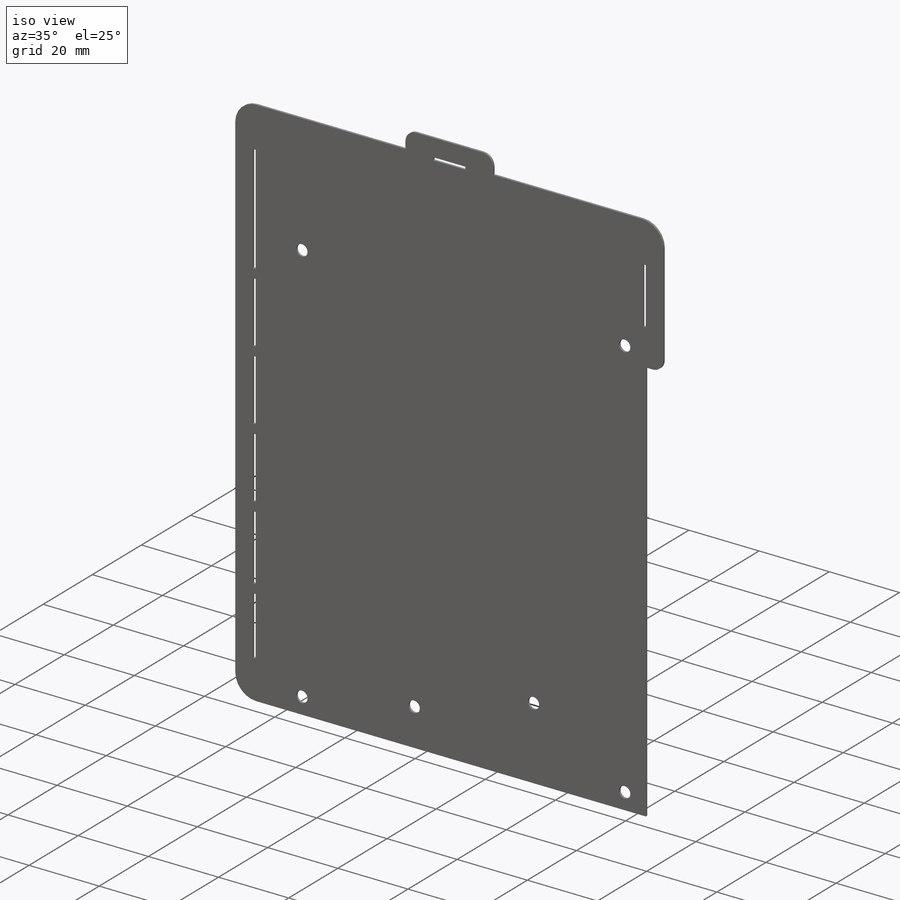
[diagram: iso view]
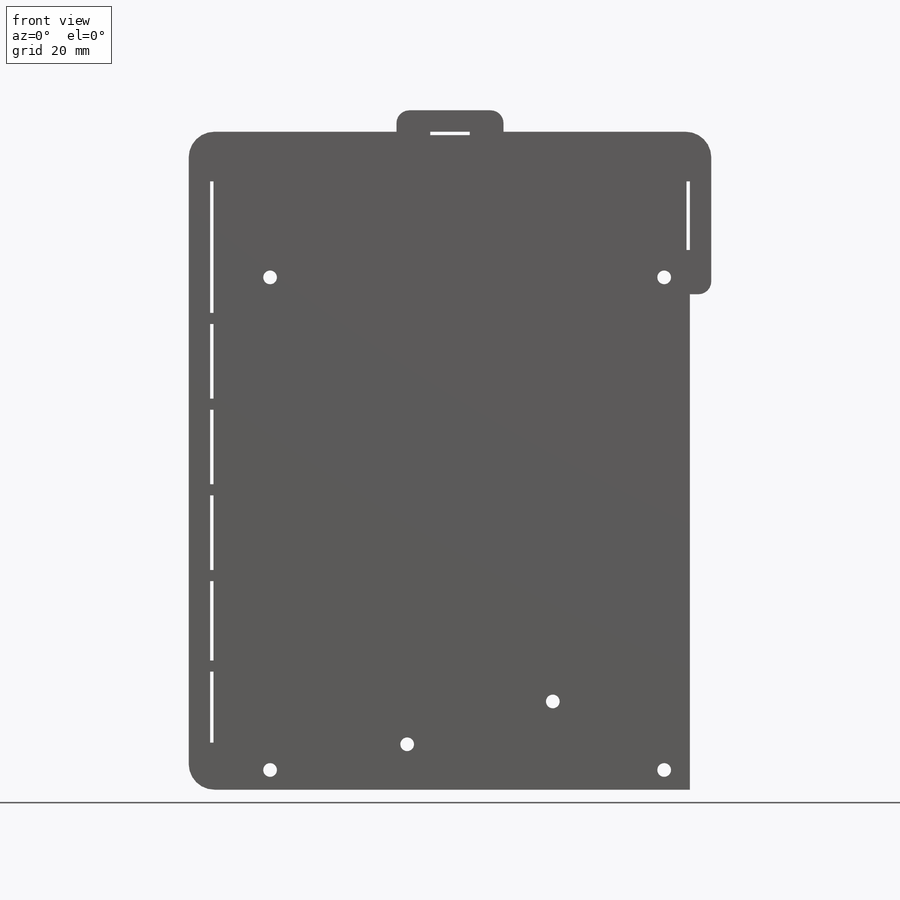
[diagram: front view]
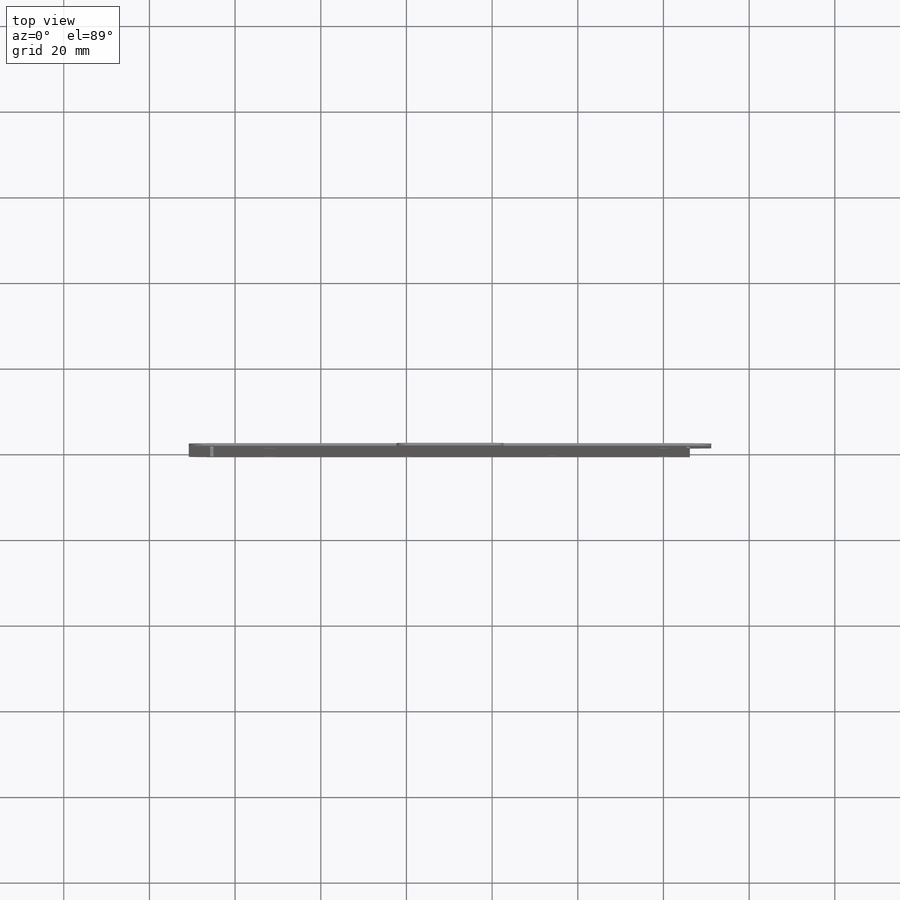
[diagram: top view]
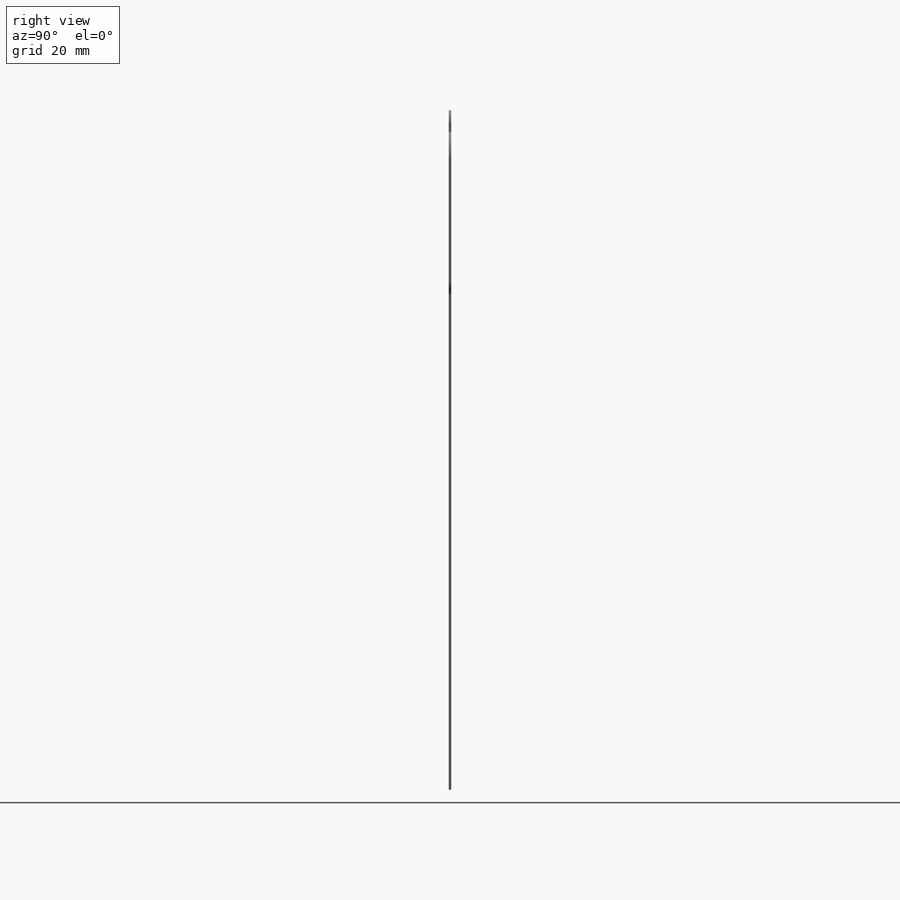
[diagram: right view]
SOLIDWORKS PART (.sldprt)
format: sldprt  version: not decoded by parser v0  size: 705,024 bytes
history: native  units: mm
features: sketch x6, cut_extrude x3, extrude x2, fillet x2, material x1 (+13 scaffold rows collapsed)
feature tree (27):
  scaffold x13  (default folders/planes/origin — collapsed)
  material  "Plain Carbon Steel"
  sketch  "Model"
  sketch  "Sketch2"  dims[c1.D2=~4.407517mm c1.D3=~4.407517mm c1.D6=4.2mm c2.D2=20.0mm c2.D3=10.0mm c3.D2=20.0mm c3.D3=8.0mm c3.D1=30.0mm c3.D4=0.6mm c3.D5=2.0mm c4.D2=1.3mm c4.D3=2.0mm c4.D7=2.5mm c4.D8=4.5mm c4.D9=~3.56966mm c5.D2=15.0mm c5.D3=5.0mm c5.D1=2.5mm]
  extrude  "Boss-Extrude1"  Depth=0.6mm
  sketch  "Sketch14"  dims[D1=3.2mm D2=0.8mm D3=11.0mm D4=131.0mm D5=10.0mm D6=2.6mm D7=28.85mm D8=50.0mm D9=70.0mm D10=90.0mm D11=110.0mm D12=16.0mm]
  cut_extrude  "Cut-Extrude1"  [1 undecoded]
  fillet  "Fillet3"  Radius=6mm
  sketch  "Sketch15"  dims[c1.D1=3.2mm c1.D2=~3.82426mm c1.D3=~3.629677mm c1.D4=~3.82426mm c1.D5=3.2mm c2.D1=16.0mm c2.D2=6.0mm c2.D3=26.0mm c2.D4=60.0mm]
  cut_extrude  "Cut-Extrude2"  [1 undecoded]
  sketch  "Sketch16"  dims[D1=5.0mm D2=25.0mm D3=56.0mm]
  extrude  "Boss-Extrude2"  [1 undecoded]
  sketch  "Sketch17"  dims[D1=9.2mm]
  cut_extrude  "Cut-Extrude3"  [1 undecoded]
  fillet  "Fillet4"  Radius=3mm
decode coverage: 8 of 13 modeling features carry decoded parameters
note: ~ marks probable driven/reference dimensions
note: 4 parameter values undecoded
summary: no parameter record found for 4 features
note: suppression state not decoded; provenance and decode notes live in map.json
